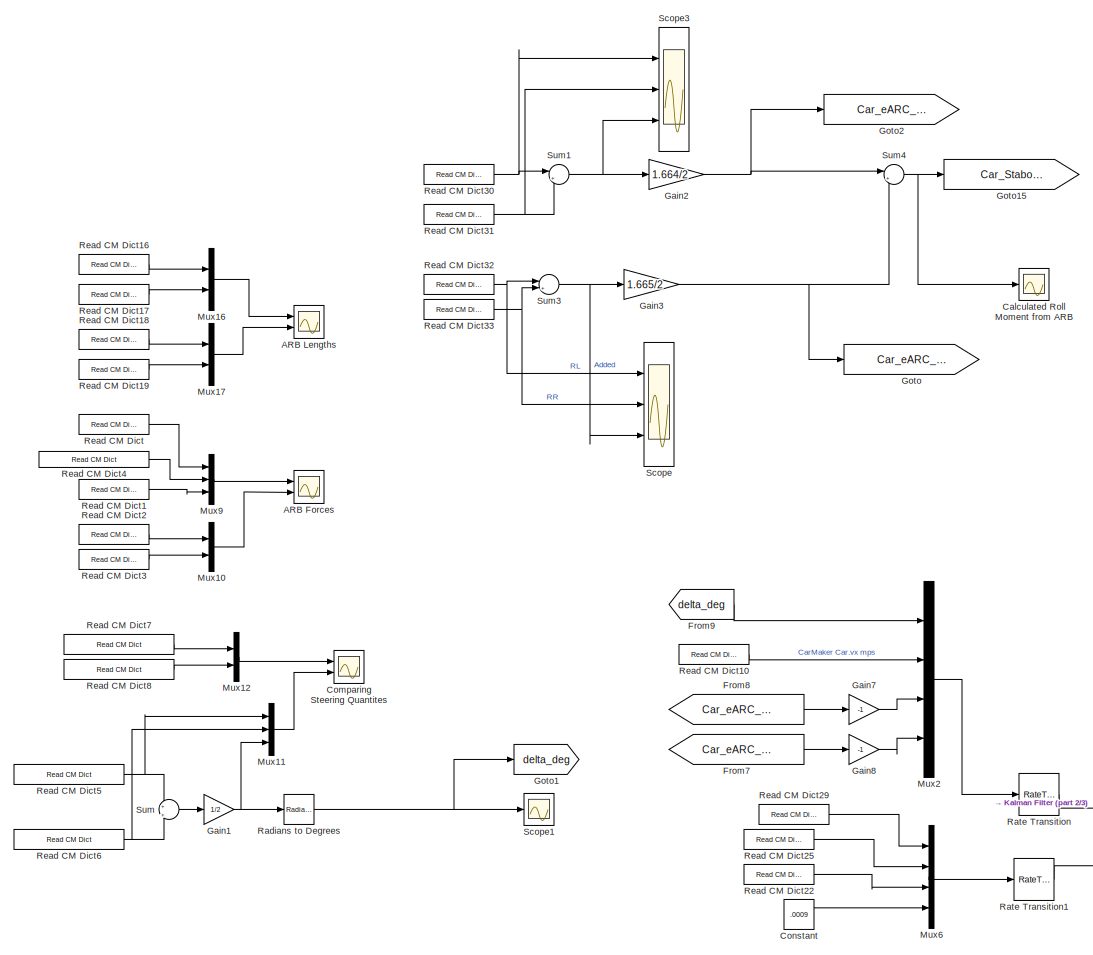
[diagram: root canvas - part 1/3, middle left region]
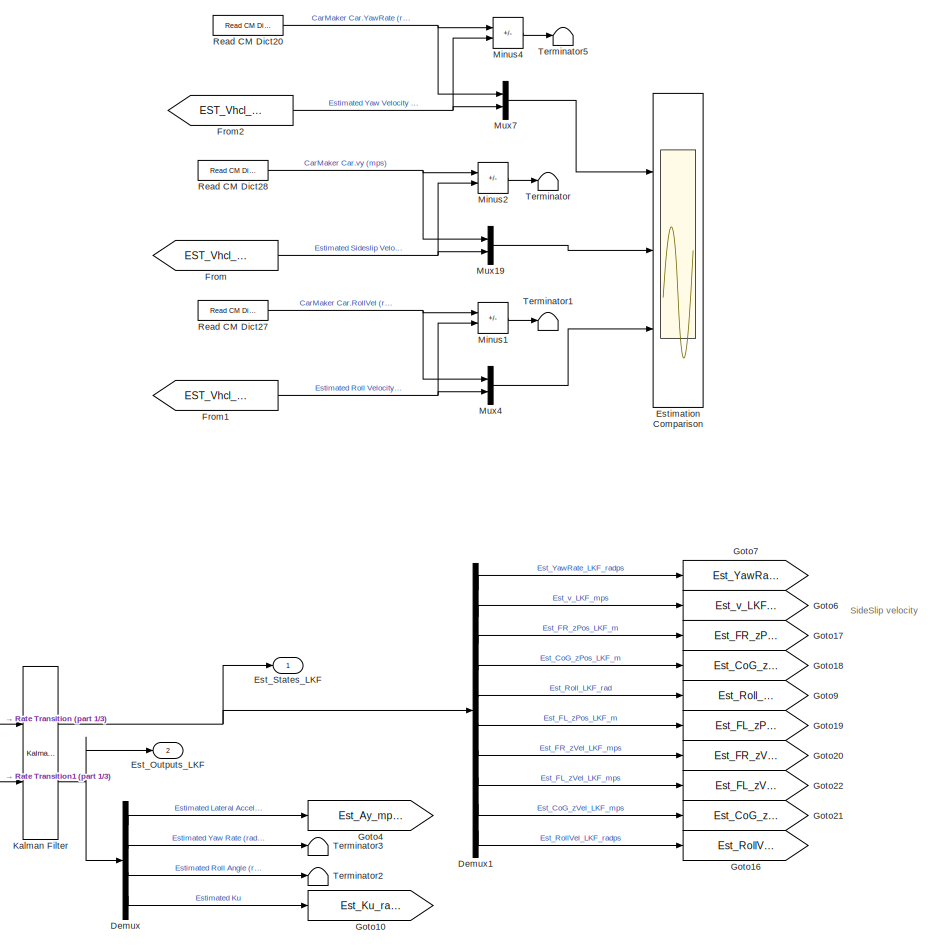
[diagram: root canvas - part 2/3, middle right region]
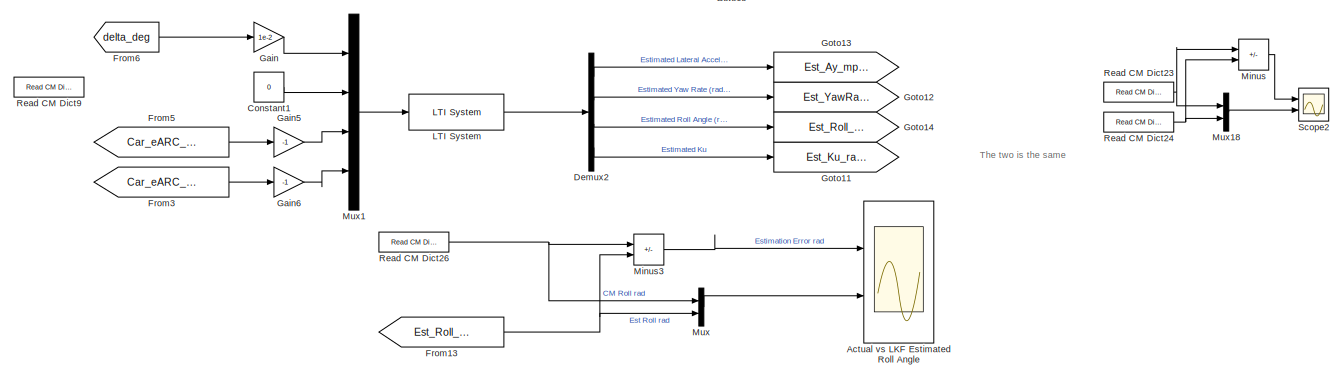
[diagram: root canvas - part 3/3, bottom right region]
MODEL slx_b2c69557600f
KIND model
CONFIG AbsTol = auto
CONFIG EnableMultiTasking = off
CONFIG FixedStep = 0.001
CONFIG MaxStep = auto
CONFIG MinStep = auto
CONFIG RelTol = 1e-3
CONFIG SampleTimeConstraint = Unconstrained
CONFIG SolverName = FixedStepAuto
CONFIG StartTime = 0.0
CONFIG StopTime = 10.0
BLOCK [Scope] ARB Forces
  Floating = off
  NumInputPorts = 2
  Ports = [2]
  ScopeSpecificationString = Simulink.scopes.TimeScopeBlockCfg('CurrentConfiguration', extmgr.ConfigurationSet(extmgr.Configuration('Core','General UI',true),extmgr.Configuration('Core','Source UI',true),extmgr.Configuration('Sources','WiredSimulink',true,'DataLoggingVariableName','ScopeData1'),extmgr.Configuration('Visuals','Time Domain',true,'SerializedDisplays',{struct('MinYLimReal','-28.73384','MaxYLimReal','28.73384','YL...<+2111ch>
BLOCK [Scope] ARB Lengths
  Floating = off
  NumInputPorts = 2
  Ports = [2]
  ScopeSpecificationString = Simulink.scopes.TimeScopeBlockCfg('CurrentConfiguration', extmgr.ConfigurationSet(extmgr.Configuration('Core','General UI',true),extmgr.Configuration('Core','Source UI',true),extmgr.Configuration('Sources','WiredSimulink',true,'DataLoggingVariableName','ScopeData2'),extmgr.Configuration('Visuals','Time Domain',true,'SerializedDisplays',{struct('MinYLimReal','-0.00304','MaxYLimReal','-0.00017','YLa...<+2399ch>
BLOCK [Scope] Actual vs LKF Estimated Roll Angle
  Floating = off
  NumInputPorts = 2
  Ports = [2]
  ScopeSpecificationString = Simulink.scopes.TimeScopeBlockCfg('CurrentConfiguration', extmgr.ConfigurationSet(extmgr.Configuration('Core','General UI',true),extmgr.Configuration('Core','Source UI',true),extmgr.Configuration('Sources','WiredSimulink',true,'DataLoggingVariableName','ScopeData3'),extmgr.Configuration('Visuals','Time Domain',true,'SerializedDisplays',{struct('MinYLimReal','-0.71461','MaxYLimReal','0.08728','YLab...<+2490ch>
BLOCK [Scope] Calculated Roll Moment from ARB 
  Floating = off
  NameLocation = right
  NumInputPorts = 1
  Ports = [1]
  ScopeSpecificationString = Simulink.scopes.TimeScopeBlockCfg('CurrentConfiguration', extmgr.ConfigurationSet(extmgr.Configuration('Core','General UI',true),extmgr.Configuration('Core','Source UI',true),extmgr.Configuration('Sources','WiredSimulink',true,'DataLoggingVariableName','ScopeData4'),extmgr.Configuration('Visuals','Time Domain',true),extmgr.Configuration('Tools','Plot Navigation',true),extmgr.Configuration('Tools',...<+40ch>
BLOCK [Scope] Comparing Steering Quantites 
  Floating = off
  NumInputPorts = 2
  Ports = [2]
  ScopeSpecificationString = Simulink.scopes.TimeScopeBlockCfg('CurrentConfiguration', extmgr.ConfigurationSet(extmgr.Configuration('Core','General UI',true),extmgr.Configuration('Core','Source UI',true),extmgr.Configuration('Sources','WiredSimulink',true,'DataLoggingVariableName','ScopeData1'),extmgr.Configuration('Visuals','Time Domain',true,'SerializedDisplays',{struct('MinYLimReal','-0.00391','MaxYLimReal','0.00737','YLab...<+2591ch>
BLOCK [Constant] Constant
  Value = .0009
BLOCK [Constant] Constant1
  Commented = on
  Value = 0
BLOCK [Demux] Demux
  DisplayOption = none
  Ports = [1, 4]
BLOCK [Demux] Demux1
  DisplayOption = none
  Outputs = 10
  Ports = [1, 10]
BLOCK [Demux] Demux2
  Commented = on
  DisplayOption = none
  Ports = [1, 4]
BLOCK [Outport] Est_Outputs_LKF
  Port = 2
BLOCK [Outport] Est_States_LKF
BLOCK [Scope] Estimation Comparison
  Floating = off
  NumInputPorts = 3
  Ports = [3]
  ScopeSpecificationString = Simulink.scopes.TimeScopeBlockCfg('CurrentConfiguration', extmgr.ConfigurationSet(extmgr.Configuration('Core','General UI',true),extmgr.Configuration('Core','Source UI',true),extmgr.Configuration('Sources','WiredSimulink',true,'DataLoggingVariableName','ScopeData6'),extmgr.Configuration('Visuals','Time Domain',true,'SerializedDisplays',{struct('MinYLimReal','-0.02726','MaxYLimReal','0.24536','YLab...<+3308ch>
BLOCK [From] From
  GotoTag = EST_Vhcl_Sideslip_mps
BLOCK [From] From1
  GotoTag = EST_Vhcl_RollVel_radps
BLOCK [From] From13
  GotoTag = Est_Roll_LKF_rad
BLOCK [From] From2
  GotoTag = EST_Vhcl_YawVel_radps
BLOCK [From] From3
  Commented = on
  GotoTag = Car_eARC_R_Moment_Nm
BLOCK [From] From5
  Commented = on
  GotoTag = Car_eARC_F_Moment_Nm
BLOCK [From] From6
  Commented = on
  GotoTag = delta_deg
BLOCK [From] From7
  GotoTag = Car_eARC_R_Moment_Nm
BLOCK [From] From8
  GotoTag = Car_eARC_F_Moment_Nm
BLOCK [From] From9
  GotoTag = delta_deg
BLOCK [Gain] Gain
  Commented = on
  Gain = 1e-2
BLOCK [Gain] Gain1
  Gain = 1/2
BLOCK [Gain] Gain2
  Gain = 1.664/2
BLOCK [Gain] Gain3
  Gain = 1.665/2
BLOCK [Gain] Gain5
  Commented = on
  Gain = -1
BLOCK [Gain] Gain6
  Commented = on
  Gain = -1
BLOCK [Gain] Gain7
  Gain = -1
BLOCK [Gain] Gain8
  Gain = -1
BLOCK [Goto] Goto
  GotoTag = Car_eARC_R_Moment_Nm
BLOCK [Goto] Goto1
  GotoTag = delta_deg
BLOCK [Goto] Goto10
  GotoTag = Est_Ku_radpmps2
BLOCK [Goto] Goto11
  Commented = on
  GotoTag = Est_Ku_radpmps2
BLOCK [Goto] Goto12
  Commented = on
  GotoTag = Est_YawRate_radps
BLOCK [Goto] Goto13
  Commented = on
  GotoTag = Est_Ay_mps2
BLOCK [Goto] Goto14
  Commented = on
  GotoTag = Est_Roll_rad
BLOCK [Goto] Goto15
  GotoTag = Car_Stabo_Moment_tot
BLOCK [Goto] Goto16
  GotoTag = Est_RollVel_LKF_radps
BLOCK [Goto] Goto17
  GotoTag = Est_FR_zPos_LKF_m
BLOCK [Goto] Goto18
  GotoTag = Est_CoG_zPos_LKF_m
BLOCK [Goto] Goto19
  GotoTag = Est_FL_zPos_LKF_m
BLOCK [Goto] Goto2
  GotoTag = Car_eARC_F_Moment_Nm
BLOCK [Goto] Goto20
  GotoTag = Est_FR_zVel_LKF_mps
BLOCK [Goto] Goto21
  GotoTag = Est_CoG_zVel_LKF_mps
BLOCK [Goto] Goto22
  GotoTag = Est_FL_zVel_LKF_mps
BLOCK [Goto] Goto4
  GotoTag = Est_Ay_mps2
BLOCK [Goto] Goto6
  GotoTag = Est_v_LKF_mps
BLOCK [Goto] Goto7
  GotoTag = Est_YawRate_LKF_radps
BLOCK [Goto] Goto9
  GotoTag = Est_Roll_LKF_rad
BLOCK [Reference] Kalman Filter  REF=ctrlSharedLib/Kalman Filter
  Ports = [2, 2]
  SourceBlock = ctrlSharedLib/Kalman Filter
  SourceProductBaseCode = CT,ID
  SourceType = ctrlKalmanFilter
BLOCK [Reference] LTI System  REF=cstblocks/LTI System
  Commented = on
  Ports = [1, 1]
  SourceBlock = cstblocks/LTI System
  SourceProductBaseCode = CT
  SourceType = LTI Block
BLOCK [Sum] Minus
  IconShape = rectangular
  Inputs = +-
  Ports = [2, 1]
BLOCK [Sum] Minus1
  IconShape = rectangular
  Inputs = +-
  Ports = [2, 1]
BLOCK [Sum] Minus2
  IconShape = rectangular
  Inputs = +-
  Ports = [2, 1]
BLOCK [Sum] Minus3
  IconShape = rectangular
  Inputs = +-
  Ports = [2, 1]
BLOCK [Sum] Minus4
  IconShape = rectangular
  Inputs = +-
  Ports = [2, 1]
BLOCK [Mux] Mux
  DisplayOption = bar
  Inputs = 2
  Ports = [2, 1]
BLOCK [Mux] Mux1
  Commented = on
  DisplayOption = bar
  Ports = [4, 1]
BLOCK [Mux] Mux10
  DisplayOption = bar
  Inputs = 2
  Ports = [2, 1]
BLOCK [Mux] Mux11
  DisplayOption = bar
  Inputs = 3
  Ports = [3, 1]
BLOCK [Mux] Mux12
  DisplayOption = bar
  Inputs = 2
  Ports = [2, 1]
BLOCK [Mux] Mux16
  DisplayOption = bar
  Inputs = 2
  Ports = [2, 1]
BLOCK [Mux] Mux17
  DisplayOption = bar
  Inputs = 2
  Ports = [2, 1]
BLOCK [Mux] Mux18
  DisplayOption = bar
  Inputs = 2
  Ports = [2, 1]
BLOCK [Mux] Mux19
  DisplayOption = bar
  Inputs = 2
  Ports = [2, 1]
BLOCK [Mux] Mux2
  DisplayOption = bar
  Ports = [4, 1]
BLOCK [Mux] Mux4
  DisplayOption = bar
  Inputs = 2
  Ports = [2, 1]
BLOCK [Mux] Mux6
  DisplayOption = bar
  Ports = [4, 1]
BLOCK [Mux] Mux7
  DisplayOption = bar
  Inputs = 2
  Ports = [2, 1]
BLOCK [Mux] Mux9
  DisplayOption = bar
  Inputs = 3
  Ports = [3, 1]
BLOCK [Reference] Radians to Degrees  REF=simulink_extras/Transformations/Radians
to Degrees
  Ports = [1, 1]
  SourceBlock = simulink_extras/Transformations/Radians\nto Degrees
  SourceProductBaseCode = SL
  SourceType = RadiansToDegrees
BLOCK [RateTransition] Rate Transition
BLOCK [RateTransition] Rate Transition1
BLOCK [Reference] Read CM Dict  REF=CarMaker4SL/Read CM Dict
  Ports = [0, 1]
  SourceBlock = CarMaker4SL/Read CM Dict
  SourceProductName = CarMaker4SL
  SourceType = Read CarMaker Dictionary Variable(s)
BLOCK [Reference] Read CM Dict1  REF=CarMaker4SL/Read CM Dict
  Ports = [0, 1]
  SourceBlock = CarMaker4SL/Read CM Dict
  SourceProductName = CarMaker4SL
  SourceType = Read CarMaker Dictionary Variable(s)
BLOCK [Reference] Read CM Dict10  REF=CarMaker4SL/Read CM Dict
  NameLocation = left
  Ports = [0, 1]
  SourceBlock = CarMaker4SL/Read CM Dict
  SourceProductName = CarMaker4SL
  SourceType = Read CarMaker Dictionary Variable(s)
BLOCK [Reference] Read CM Dict16  REF=CarMaker4SL/Read CM Dict
  Ports = [0, 1]
  SourceBlock = CarMaker4SL/Read CM Dict
  SourceProductName = CarMaker4SL
  SourceType = Read CarMaker Dictionary Variable(s)
BLOCK [Reference] Read CM Dict17  REF=CarMaker4SL/Read CM Dict
  Ports = [0, 1]
  SourceBlock = CarMaker4SL/Read CM Dict
  SourceProductName = CarMaker4SL
  SourceType = Read CarMaker Dictionary Variable(s)
BLOCK [Reference] Read CM Dict18  REF=CarMaker4SL/Read CM Dict
  Ports = [0, 1]
  SourceBlock = CarMaker4SL/Read CM Dict
  SourceProductName = CarMaker4SL
  SourceType = Read CarMaker Dictionary Variable(s)
BLOCK [Reference] Read CM Dict19  REF=CarMaker4SL/Read CM Dict
  Ports = [0, 1]
  SourceBlock = CarMaker4SL/Read CM Dict
  SourceProductName = CarMaker4SL
  SourceType = Read CarMaker Dictionary Variable(s)
BLOCK [Reference] Read CM Dict2  REF=CarMaker4SL/Read CM Dict
  Ports = [0, 1]
  SourceBlock = CarMaker4SL/Read CM Dict
  SourceProductName = CarMaker4SL
  SourceType = Read CarMaker Dictionary Variable(s)
BLOCK [Reference] Read CM Dict20  REF=CarMaker4SL/Read CM Dict
  NameLocation = left
  Ports = [0, 1]
  SourceBlock = CarMaker4SL/Read CM Dict
  SourceProductName = CarMaker4SL
  SourceType = Read CarMaker Dictionary Variable(s)
BLOCK [Reference] Read CM Dict22  REF=CarMaker4SL/Read CM Dict
  NameLocation = left
  Ports = [0, 1]
  SourceBlock = CarMaker4SL/Read CM Dict
  SourceProductName = CarMaker4SL
  SourceType = Read CarMaker Dictionary Variable(s)
BLOCK [Reference] Read CM Dict23  REF=CarMaker4SL/Read CM Dict
  NameLocation = left
  Ports = [0, 1]
  SourceBlock = CarMaker4SL/Read CM Dict
  SourceProductName = CarMaker4SL
  SourceType = Read CarMaker Dictionary Variable(s)
BLOCK [Reference] Read CM Dict24  REF=CarMaker4SL/Read CM Dict
  NameLocation = left
  Ports = [0, 1]
  SourceBlock = CarMaker4SL/Read CM Dict
  SourceProductName = CarMaker4SL
  SourceType = Read CarMaker Dictionary Variable(s)
BLOCK [Reference] Read CM Dict25  REF=CarMaker4SL/Read CM Dict
  NameLocation = left
  Ports = [0, 1]
  SourceBlock = CarMaker4SL/Read CM Dict
  SourceProductName = CarMaker4SL
  SourceType = Read CarMaker Dictionary Variable(s)
BLOCK [Reference] Read CM Dict26  REF=CarMaker4SL/Read CM Dict
  NameLocation = left
  Ports = [0, 1]
  SourceBlock = CarMaker4SL/Read CM Dict
  SourceProductName = CarMaker4SL
  SourceType = Read CarMaker Dictionary Variable(s)
BLOCK [Reference] Read CM Dict27  REF=CarMaker4SL/Read CM Dict
  NameLocation = left
  Ports = [0, 1]
  SourceBlock = CarMaker4SL/Read CM Dict
  SourceProductName = CarMaker4SL
  SourceType = Read CarMaker Dictionary Variable(s)
BLOCK [Reference] Read CM Dict28  REF=CarMaker4SL/Read CM Dict
  NameLocation = left
  Ports = [0, 1]
  SourceBlock = CarMaker4SL/Read CM Dict
  SourceProductName = CarMaker4SL
  SourceType = Read CarMaker Dictionary Variable(s)
BLOCK [Reference] Read CM Dict29  REF=CarMaker4SL/Read CM Dict
  Ports = [0, 1]
  SourceBlock = CarMaker4SL/Read CM Dict
  SourceProductName = CarMaker4SL
  SourceType = Read CarMaker Dictionary Variable(s)
BLOCK [Reference] Read CM Dict3  REF=CarMaker4SL/Read CM Dict
  Ports = [0, 1]
  SourceBlock = CarMaker4SL/Read CM Dict
  SourceProductName = CarMaker4SL
  SourceType = Read CarMaker Dictionary Variable(s)
BLOCK [Reference] Read CM Dict30  REF=CarMaker4SL/Read CM Dict
  Ports = [0, 1]
  SourceBlock = CarMaker4SL/Read CM Dict
  SourceProductName = CarMaker4SL
  SourceType = Read CarMaker Dictionary Variable(s)
BLOCK [Reference] Read CM Dict31  REF=CarMaker4SL/Read CM Dict
  Ports = [0, 1]
  SourceBlock = CarMaker4SL/Read CM Dict
  SourceProductName = CarMaker4SL
  SourceType = Read CarMaker Dictionary Variable(s)
BLOCK [Reference] Read CM Dict32  REF=CarMaker4SL/Read CM Dict
  Ports = [0, 1]
  SourceBlock = CarMaker4SL/Read CM Dict
  SourceProductName = CarMaker4SL
  SourceType = Read CarMaker Dictionary Variable(s)
BLOCK [Reference] Read CM Dict33  REF=CarMaker4SL/Read CM Dict
  Ports = [0, 1]
  SourceBlock = CarMaker4SL/Read CM Dict
  SourceProductName = CarMaker4SL
  SourceType = Read CarMaker Dictionary Variable(s)
BLOCK [Reference] Read CM Dict4  REF=CarMaker4SL/Read CM Dict
  Ports = [0, 1]
  SourceBlock = CarMaker4SL/Read CM Dict
  SourceProductName = CarMaker4SL
  SourceType = Read CarMaker Dictionary Variable(s)
BLOCK [Reference] Read CM Dict5  REF=CarMaker4SL/Read CM Dict
  Ports = [0, 1]
  SourceBlock = CarMaker4SL/Read CM Dict
  SourceProductName = CarMaker4SL
  SourceType = Read CarMaker Dictionary Variable(s)
BLOCK [Reference] Read CM Dict6  REF=CarMaker4SL/Read CM Dict
  Ports = [0, 1]
  SourceBlock = CarMaker4SL/Read CM Dict
  SourceProductName = CarMaker4SL
  SourceType = Read CarMaker Dictionary Variable(s)
BLOCK [Reference] Read CM Dict7  REF=CarMaker4SL/Read CM Dict
  Ports = [0, 1]
  SourceBlock = CarMaker4SL/Read CM Dict
  SourceProductName = CarMaker4SL
  SourceType = Read CarMaker Dictionary Variable(s)
BLOCK [Reference] Read CM Dict8  REF=CarMaker4SL/Read CM Dict
  Ports = [0, 1]
  SourceBlock = CarMaker4SL/Read CM Dict
  SourceProductName = CarMaker4SL
  SourceType = Read CarMaker Dictionary Variable(s)
BLOCK [Reference] Read CM Dict9  REF=CarMaker4SL/Read CM Dict
  Commented = on
  NameLocation = left
  Ports = [0, 1]
  SourceBlock = CarMaker4SL/Read CM Dict
  SourceProductName = CarMaker4SL
  SourceType = Read CarMaker Dictionary Variable(s)
BLOCK [Scope] Scope
  Floating = off
  NumInputPorts = 3
  Ports = [3]
  ScopeSpecificationString = Simulink.scopes.TimeScopeBlockCfg('CurrentConfiguration', extmgr.ConfigurationSet(extmgr.Configuration('Core','General UI',true),extmgr.Configuration('Core','Source UI',true),extmgr.Configuration('Sources','WiredSimulink',true),extmgr.Configuration('Visuals','Time Domain',true,'SerializedDisplays',{struct('MinYLimReal','-1.00000','MaxYLimReal','1.00000','YLabelReal','','MinYLimMag','0.00000','MaxY...<+1343ch>
BLOCK [Scope] Scope1
  Floating = off
  NumInputPorts = 1
  Ports = [1]
  ScopeSpecificationString = Simulink.scopes.TimeScopeBlockCfg('CurrentConfiguration', extmgr.ConfigurationSet(extmgr.Configuration('Core','General UI',true),extmgr.Configuration('Core','Source UI',true),extmgr.Configuration('Sources','WiredSimulink',true,'DataLoggingVariableName','ScopeData2'),extmgr.Configuration('Visuals','Time Domain',true,'SerializedDisplays',{struct('MinYLimReal','-1.68723','MaxYLimReal','4.09614','YLab...<+1417ch>
BLOCK [Scope] Scope2
  Floating = off
  NumInputPorts = 2
  Ports = [2]
  ScopeSpecificationString = Simulink.scopes.TimeScopeBlockCfg('CurrentConfiguration', extmgr.ConfigurationSet(extmgr.Configuration('Core','General UI',true),extmgr.Configuration('Core','Source UI',true),extmgr.Configuration('Sources','WiredSimulink',true,'DataLoggingVariableName','ScopeData9'),extmgr.Configuration('Visuals','Time Domain',true,'SerializedDisplays',{struct('MinYLimReal','-1.00000','MaxYLimReal','1.00000','YLab...<+2133ch>
BLOCK [Scope] Scope3
  Floating = off
  NumInputPorts = 3
  Ports = [3]
  ScopeSpecificationString = Simulink.scopes.TimeScopeBlockCfg('CurrentConfiguration', extmgr.ConfigurationSet(extmgr.Configuration('Core','General UI',true),extmgr.Configuration('Core','Source UI',true),extmgr.Configuration('Sources','WiredSimulink',true,'DataLoggingVariableName','ScopeData1'),extmgr.Configuration('Visuals','Time Domain',true,'SerializedDisplays',{struct('MinYLimReal','-1.00000','MaxYLimReal','1.00000','YLab...<+1382ch>
BLOCK [Sum] Sum
  Inputs = +|+
  Ports = [2, 1]
BLOCK [Sum] Sum1
  Inputs = |+-
  Ports = [2, 1]
BLOCK [Sum] Sum3
  Inputs = |+-
  Ports = [2, 1]
BLOCK [Sum] Sum4
  Inputs = |++
  Ports = [2, 1]
BLOCK [Terminator] Terminator
BLOCK [Terminator] Terminator1
BLOCK [Terminator] Terminator2
BLOCK [Terminator] Terminator3
BLOCK [Terminator] Terminator5
ANNOTATION (root): SideSlip velocity
ANNOTATION (root): The two is the same
LINE Constant1:1 -> Mux1:2
LINE Constant:1 -> Mux6:4
LINE Demux1:1 -> Goto7:1
LINE Demux1:10 -> Goto16:1
LINE Demux1:2 -> Goto6:1
LINE Demux1:3 -> Goto17:1
LINE Demux1:4 -> Goto18:1
LINE Demux1:5 -> Goto9:1
LINE Demux1:6 -> Goto19:1
LINE Demux1:7 -> Goto20:1
LINE Demux1:8 -> Goto22:1
LINE Demux1:9 -> Goto21:1
LINE Demux2:1 -> Goto13:1
LINE Demux2:2 -> Goto12:1
LINE Demux2:3 -> Goto14:1
LINE Demux2:4 -> Goto11:1
LINE Demux:1 -> Goto4:1
LINE Demux:2 -> Terminator3:1
LINE Demux:3 -> Terminator2:1
LINE Demux:4 -> Goto10:1
NET From13:1 -> Minus3:2, Mux:2
NET From1:1 -> Minus1:2, Mux4:2
NET From2:1 -> Minus4:2, Mux7:2
LINE From3:1 -> Gain6:1
LINE From5:1 -> Gain5:1
LINE From6:1 -> Gain:1
LINE From7:1 -> Gain8:1
LINE From8:1 -> Gain7:1
LINE From9:1 -> Mux2:1
NET From:1 -> Minus2:2, Mux19:2
NET Gain1:1 -> Mux11:3, Radians to Degrees:1
NET Gain2:1 -> Goto2:1, Sum4:1
NET Gain3:1 -> Goto:1, Sum4:2
LINE Gain5:1 -> Mux1:3
LINE Gain6:1 -> Mux1:4
LINE Gain7:1 -> Mux2:3
LINE Gain8:1 -> Mux2:4
LINE Gain:1 -> Mux1:1
NET Kalman Filter:1 -> Demux1:1, Est_States_LKF:1
NET Kalman Filter:2 -> Demux:1, Est_Outputs_LKF:1
LINE LTI System:1 -> Demux2:1
LINE Minus1:1 -> Terminator1:1
LINE Minus2:1 -> Terminator:1
LINE Minus3:1 -> Actual vs LKF Estimated Roll Angle:1
LINE Minus4:1 -> Terminator5:1
LINE Minus:1 -> Scope2:1
LINE Mux10:1 -> ARB Forces:2
LINE Mux11:1 -> Comparing Steering Quantites :2
LINE Mux12:1 -> Comparing Steering Quantites :1
LINE Mux16:1 -> ARB Lengths:1
LINE Mux17:1 -> ARB Lengths:2
LINE Mux18:1 -> Scope2:2
LINE Mux19:1 -> Estimation Comparison:2
LINE Mux1:1 -> LTI System:1
LINE Mux2:1 -> Rate Transition:1
LINE Mux4:1 -> Estimation Comparison:3
LINE Mux6:1 -> Rate Transition1:1
LINE Mux7:1 -> Estimation Comparison:1
LINE Mux9:1 -> ARB Forces:1
LINE Mux:1 -> Actual vs LKF Estimated Roll Angle:2
NET Radians to Degrees:1 -> Goto1:1, Scope1:1
LINE Rate Transition1:1 -> Kalman Filter:2
LINE Rate Transition:1 -> Kalman Filter:1
LINE Read CM Dict10:1 -> Mux2:2
LINE Read CM Dict16:1 -> Mux16:1
LINE Read CM Dict17:1 -> Mux16:2
LINE Read CM Dict18:1 -> Mux17:1
LINE Read CM Dict19:1 -> Mux17:2
LINE Read CM Dict1:1 -> Mux9:3
NET Read CM Dict20:1 -> Minus4:1, Mux7:1
LINE Read CM Dict22:1 -> Mux6:3
NET Read CM Dict23:1 -> Minus:1, Mux18:1
NET Read CM Dict24:1 -> Minus:2, Mux18:2
LINE Read CM Dict25:1 -> Mux6:2
NET Read CM Dict26:1 -> Minus3:1, Mux:1
NET Read CM Dict27:1 -> Minus1:1, Mux4:1
NET Read CM Dict28:1 -> Minus2:1, Mux19:1
LINE Read CM Dict29:1 -> Mux6:1
LINE Read CM Dict2:1 -> Mux10:1
NET Read CM Dict30:1 -> Scope3:1, Sum1:1
NET Read CM Dict31:1 -> Scope3:2, Sum1:2
NET Read CM Dict32:1 -> Scope:1, Sum3:1
NET Read CM Dict33:1 -> Scope:2, Sum3:2
LINE Read CM Dict3:1 -> Mux10:2
LINE Read CM Dict4:1 -> Mux9:2
NET Read CM Dict5:1 -> Mux11:1, Sum:1
NET Read CM Dict6:1 -> Mux11:2, Sum:2
LINE Read CM Dict7:1 -> Mux12:1
LINE Read CM Dict8:1 -> Mux12:2
LINE Read CM Dict:1 -> Mux9:1
NET Sum1:1 -> Gain2:1, Scope3:3
NET Sum3:1 -> Gain3:1, Scope:3
NET Sum4:1 -> Calculated Roll Moment from ARB :1, Goto15:1
LINE Sum:1 -> Gain1:1
note: NET lines group one-source signal fan-out (src -> all destinations, sorted); 1:1 wires keep LINE
